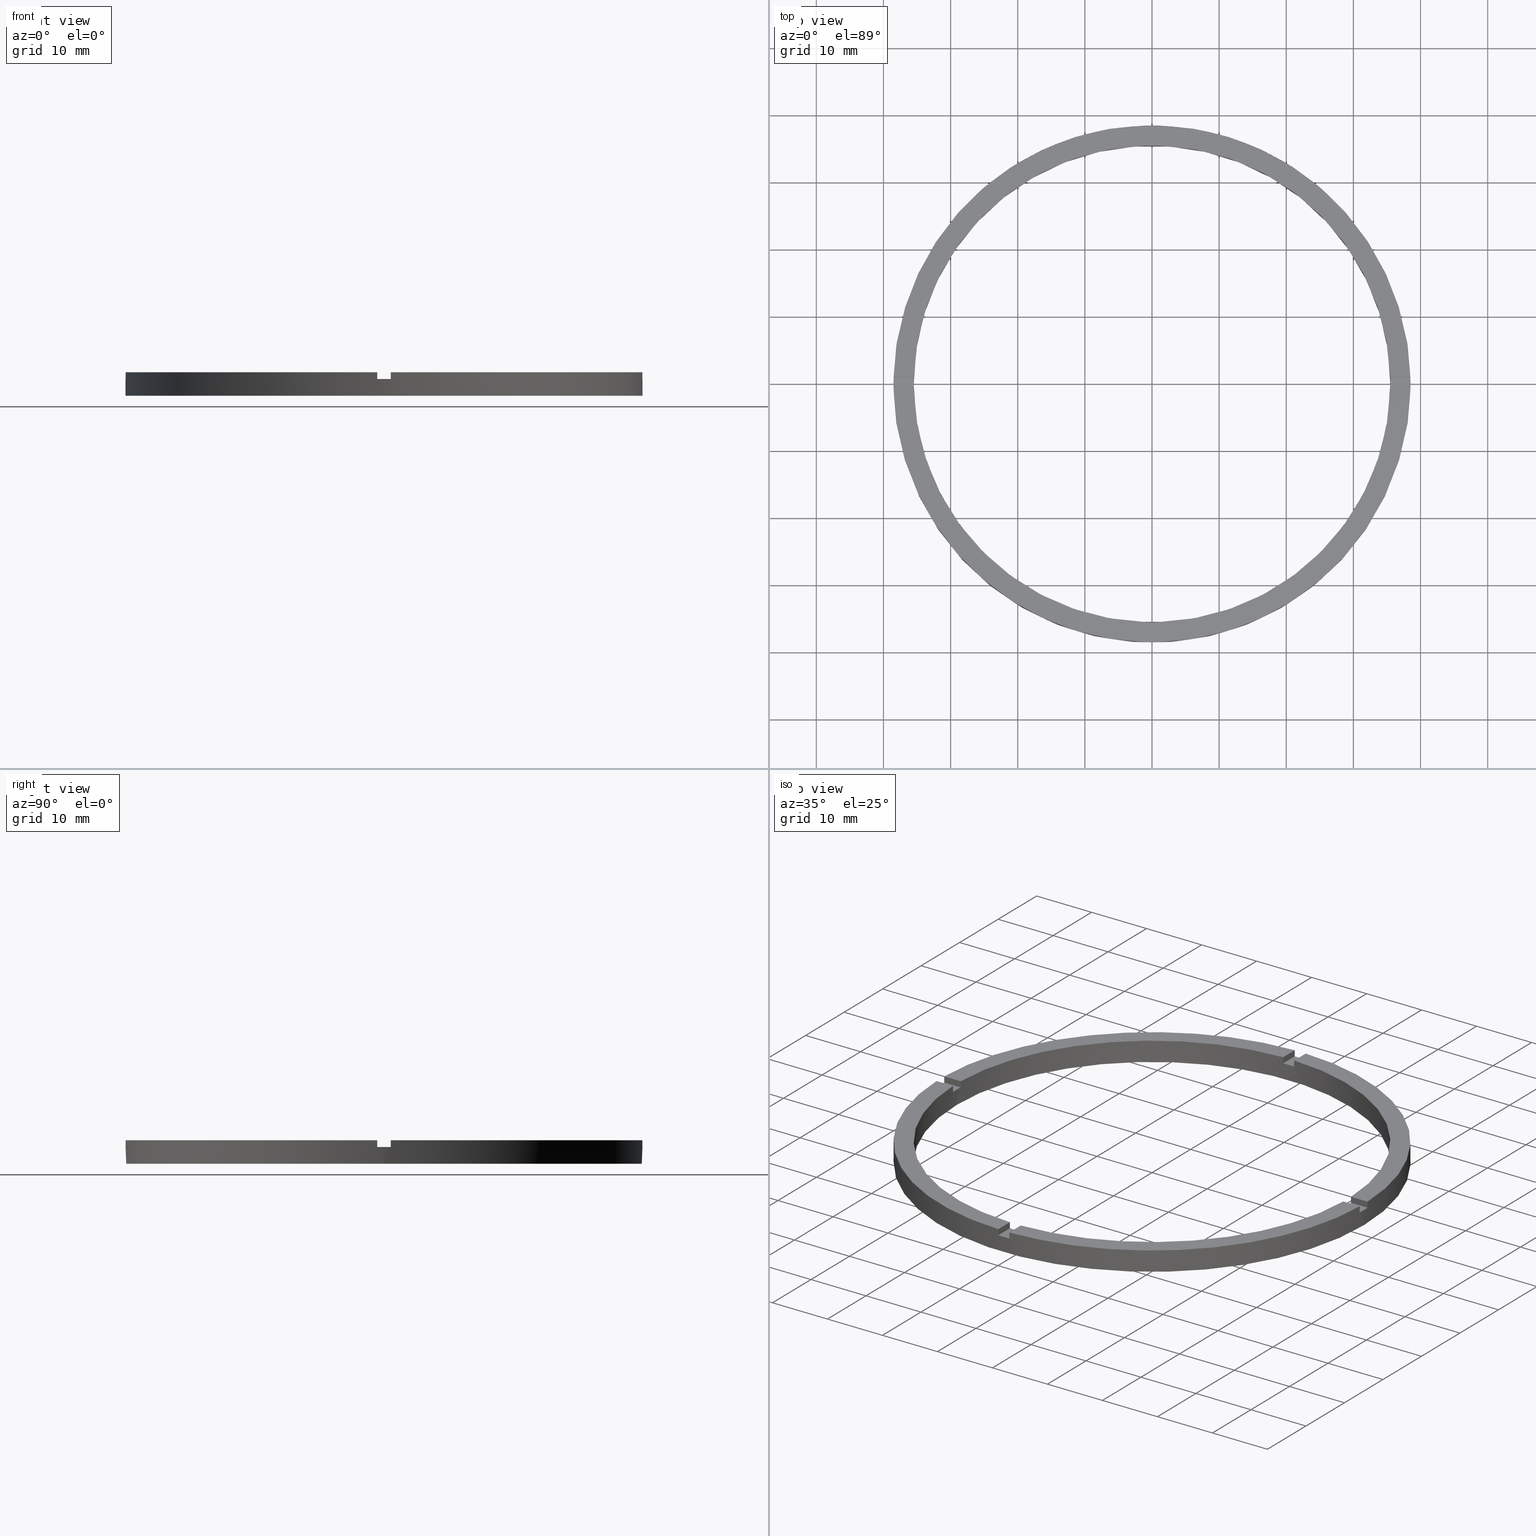
[diagram: canonical four-view strip — front | top / right | iso, engineering-drawing reading convention]
A machine part, canonical four-view strip (front | top / right | iso — engineering-drawing reading convention). The complete STEP part file that produces these views, byte-faithful:
ISO-10303-21;
HEADER;
FILE_DESCRIPTION (( 'STEP AP203' ),
    '1' );
FILE_NAME ('514158.step',
    '2024-12-26T02:43:10',
    ( 'MSI' ),
    ( '' ),
    'SwSTEP 2.0',
    'SolidWorks 2020',
    '' );
FILE_SCHEMA (( 'CONFIG_CONTROL_DESIGN' ));
ENDSEC;

DATA;
#1 = APPROVAL ( #595, 'δָ��' ) ;
#2 = EDGE_CURVE ( 'NONE', #715, #244, #297, .T. ) ;
#3 = CARTESIAN_POINT ( 'NONE',  ( 0.000000000000000000, 0.000000000000000000, 3.500000000000000000 ) ) ;
#4 = DIRECTION ( 'NONE',  ( 0.000000000000000000, 0.000000000000000000, 1.000000000000000000 ) ) ;
#5 = DIRECTION ( 'NONE',  ( 1.000000000000000000, 0.000000000000000000, 0.000000000000000000 ) ) ;
#6 = DIRECTION ( 'NONE',  ( -1.301042606982605074E-16, 1.000000000000000000, -0.000000000000000000 ) ) ;
#7 = EDGE_CURVE ( 'NONE', #715, #495, #549, .T. ) ;
#8 = ORIENTED_EDGE ( 'NONE', *, *, #578, .F. ) ;
#9 = DIRECTION ( 'NONE',  ( 1.000000000000000000, 0.000000000000000000, -0.000000000000000000 ) ) ;
#10 = CARTESIAN_POINT ( 'NONE',  ( -28.50000000000018474, -1.000000000000025979, 2.500000000000000000 ) ) ;
#11 = DIRECTION ( 'NONE',  ( -1.000000000000000000, -6.505213034913025371E-17, -0.000000000000000000 ) ) ;
#12 = CARTESIAN_POINT ( 'NONE',  ( 0.000000000000000000, 0.000000000000000000, 3.500000000000000000 ) ) ;
#13 = ORIENTED_EDGE ( 'NONE', *, *, #540, .T. ) ;
#14 = ORIENTED_EDGE ( 'NONE', *, *, #235, .T. ) ;
#15 = DIRECTION ( 'NONE',  ( -0.000000000000000000, -0.000000000000000000, -1.000000000000000000 ) ) ;
#16 = VERTEX_POINT ( 'NONE', #106 ) ;
#17 = DIRECTION ( 'NONE',  ( 1.000000000000000000, 1.951563910473907735E-16, -0.000000000000000000 ) ) ;
#18 = VECTOR ( 'NONE', #481, 1000.000000000000000 ) ;
#19 = CARTESIAN_POINT ( 'NONE',  ( 0.000000000000000000, 0.000000000000000000, 2.500000000000000000 ) ) ;
#20 = ORIENTED_EDGE ( 'NONE', *, *, #334, .T. ) ;
#21 = CARTESIAN_POINT ( 'NONE',  ( 0.9999999999998400169, -35.48591269785801927, 3.500000000000000000 ) ) ;
#22 = AXIS2_PLACEMENT_3D ( 'NONE', #107, #756, #745 ) ;
#23 = APPROVAL_STATUS ( 'not_yet_approved' ) ;
#24 = ORIENTED_EDGE ( 'NONE', *, *, #618, .T. ) ;
#25 = DIRECTION ( 'NONE',  ( 0.000000000000000000, 0.000000000000000000, 1.000000000000000000 ) ) ;
#26 = VERTEX_POINT ( 'NONE', #302 ) ;
#27 = EDGE_LOOP ( 'NONE', ( #751, #688, #755, #234 ) ) ;
#28 = ORIENTED_EDGE ( 'NONE', *, *, #366, .F. ) ;
#29 = CARTESIAN_POINT ( 'NONE',  ( -28.50000000000018474, -1.000000000000025979, 2.500000000000000000 ) ) ;
#30 = CARTESIAN_POINT ( 'NONE',  ( -1.000000000000159650, -38.48701079585163143, 2.500000000000000000 ) ) ;
#31 = CARTESIAN_POINT ( 'NONE',  ( -38.48701079585163143, -1.000000000000027978, 2.500000000000000000 ) ) ;
#32 = VECTOR ( 'NONE', #645, 1000.000000000000000 ) ;
#33 = AXIS2_PLACEMENT_3D ( 'NONE', #630, #398, #663 ) ;
#34 = CC_DESIGN_PERSON_AND_ORGANIZATION_ASSIGNMENT ( #360, #120, ( #556 ) ) ;
#35 = EDGE_CURVE ( 'NONE', #493, #528, #274, .T. ) ;
#36 = AXIS2_PLACEMENT_3D ( 'NONE', #206, #140, #277 ) ;
#37 = DIRECTION ( 'NONE',  ( -1.000000000000000000, 0.000000000000000000, 0.000000000000000000 ) ) ;
#38 = LINE ( 'NONE', #237, #43 ) ;
#39 = FACE_OUTER_BOUND ( 'NONE', #459, .T. ) ;
#40 = DIRECTION ( 'NONE',  ( 1.000000000000000000, 0.000000000000000000, 0.000000000000000000 ) ) ;
#41 = CARTESIAN_POINT ( 'NONE',  ( 0.9999999999999746869, 35.48591269785801217, 3.500000000000000000 ) ) ;
#42 = EDGE_CURVE ( 'NONE', #71, #695, #291, .T. ) ;
#43 = VECTOR ( 'NONE', #567, 1000.000000000000000 ) ;
#44 = DATE_TIME_ROLE ( 'classification_date' ) ;
#45 = DIRECTION ( 'NONE',  ( -1.951563910473907735E-16, 1.000000000000000000, 0.000000000000000000 ) ) ;
#46 = VECTOR ( 'NONE', #205, 1000.000000000000000 ) ;
#47 = CIRCLE ( 'NONE', #284, 35.50000000000000711 ) ;
#48 = DIRECTION ( 'NONE',  ( 1.000000000000000000, 0.000000000000000000, 0.000000000000000000 ) ) ;
#49 = LINE ( 'NONE', #775, #569 ) ;
#50 = ADVANCED_FACE ( 'NONE', ( #537 ), #753, .F. ) ;
#51 = CARTESIAN_POINT ( 'NONE',  ( 38.48701079585163143, -1.000000000000157208, 2.500000000000000000 ) ) ;
#52 = CYLINDRICAL_SURFACE ( 'NONE', #681, 35.50000000000000711 ) ;
#53 = FACE_OUTER_BOUND ( 'NONE', #203, .T. ) ;
#54 = DIRECTION ( 'NONE',  ( 0.000000000000000000, 0.000000000000000000, 1.000000000000000000 ) ) ;
#55 = DIRECTION ( 'NONE',  ( -1.000000000000000000, -6.505213034913025371E-17, -0.000000000000000000 ) ) ;
#56 = AXIS2_PLACEMENT_3D ( 'NONE', #498, #550, #315 ) ;
#57 = FACE_OUTER_BOUND ( 'NONE', #27, .T. ) ;
#58 = DIRECTION ( 'NONE',  ( 0.000000000000000000, 0.000000000000000000, 1.000000000000000000 ) ) ;
#59 = CARTESIAN_POINT ( 'NONE',  ( -1.000000000000025313, 28.49999999999999645, 3.500000000000000000 ) ) ;
#60 = LINE ( 'NONE', #716, #602 ) ;
#61 = DIRECTION ( 'NONE',  ( 0.000000000000000000, 0.000000000000000000, 1.000000000000000000 ) ) ;
#62 = ORIENTED_EDGE ( 'NONE', *, *, #647, .T. ) ;
#63 = DIRECTION ( 'NONE',  ( -1.000000000000000000, 0.000000000000000000, 0.000000000000000000 ) ) ;
#64 = VECTOR ( 'NONE', #327, 1000.000000000000000 ) ;
#65 = ORIENTED_EDGE ( 'NONE', *, *, #301, .F. ) ;
#66 = DIRECTION ( 'NONE',  ( 0.000000000000000000, 1.000000000000000000, 0.000000000000000000 ) ) ;
#67 = CIRCLE ( 'NONE', #692, 35.50000000000000711 ) ;
#68 = ORIENTED_EDGE ( 'NONE', *, *, #270, .T. ) ;
#69 = ORGANIZATION ( 'δָ��', 'δָ��', '' ) ;
#70 = LINE ( 'NONE', #733, #346 ) ;
#71 = VERTEX_POINT ( 'NONE', #384 ) ;
#72 = EDGE_CURVE ( 'NONE', #673, #182, #562, .T. ) ;
#73 = PLANE ( 'NONE',  #409 ) ;
#74 = AXIS2_PLACEMENT_3D ( 'NONE', #12, #510, #125 ) ;
#75 = PERSON_AND_ORGANIZATION ( #306, #69 ) ;
#76 = FACE_OUTER_BOUND ( 'NONE', #458, .T. ) ;
#77 = ORIENTED_EDGE ( 'NONE', *, *, #606, .F. ) ;
#78 = DIRECTION ( 'NONE',  ( -0.000000000000000000, -0.000000000000000000, -1.000000000000000000 ) ) ;
#79 = FACE_OUTER_BOUND ( 'NONE', #287, .T. ) ;
#80 = CALENDAR_DATE ( 2024, 26, 12 ) ;
#81 = CIRCLE ( 'NONE', #590, 35.50000000000000711 ) ;
#82 = CALENDAR_DATE ( 2024, 26, 12 ) ;
#83 = FACE_OUTER_BOUND ( 'NONE', #186, .T. ) ;
#84 = DIRECTION ( 'NONE',  ( -0.000000000000000000, -0.000000000000000000, -1.000000000000000000 ) ) ;
#85 = DATE_AND_TIME ( #343, #351 ) ;
#86 = CIRCLE ( 'NONE', #119, 38.50000000000000000 ) ;
#87 = PERSON_AND_ORGANIZATION ( #306, #69 ) ;
#88 = DIRECTION ( 'NONE',  ( 1.000000000000000000, 0.000000000000000000, 0.000000000000000000 ) ) ;
#89 = FACE_OUTER_BOUND ( 'NONE', #674, .T. ) ;
#90 = EDGE_CURVE ( 'NONE', #443, #16, #322, .T. ) ;
#91 = LINE ( 'NONE', #255, #591 ) ;
#92 = LOCAL_TIME ( 10, 43, 10.00000000000000000, #358 ) ;
#93 = EDGE_CURVE ( 'NONE', #763, #190, #311, .T. ) ;
#94 = APPLICATION_CONTEXT ( 'configuration controlled 3d designs of mechanical parts and assemblies' ) ;
#95 = DIRECTION ( 'NONE',  ( -1.000000000000000000, -1.951563910473907735E-16, 0.000000000000000000 ) ) ;
#96 = APPROVAL_PERSON_ORGANIZATION ( #341, #379, #679 ) ;
#97 = DATE_AND_TIME ( #616, #92 ) ;
#98 = CARTESIAN_POINT ( 'NONE',  ( 0.000000000000000000, 0.000000000000000000, 3.500000000000000000 ) ) ;
#99 = COORDINATED_UNIVERSAL_TIME_OFFSET ( 8, 0, .AHEAD. ) ;
#100 = DIRECTION ( 'NONE',  ( -1.000000000000000000, 0.000000000000000000, 0.000000000000000000 ) ) ;
#101 = CARTESIAN_POINT ( 'NONE',  ( 0.000000000000000000, 0.000000000000000000, 3.500000000000000000 ) ) ;
#102 = CARTESIAN_POINT ( 'NONE',  ( -1.000000000000025313, 35.48591269785801217, 3.500000000000000000 ) ) ;
#103 = PRODUCT_DEFINITION_SHAPE ( 'NONE', 'NONE',  #127 ) ;
#104 = ADVANCED_FACE ( 'NONE', ( #53 ), #166, .T. ) ;
#105 = MANIFOLD_SOLID_BREP ( '�г�-����1', #211 ) ;
#106 = CARTESIAN_POINT ( 'NONE',  ( -1.000000000000025313, 38.48701079585163143, 2.500000000000000000 ) ) ;
#107 = CARTESIAN_POINT ( 'NONE',  ( 0.000000000000000000, 0.000000000000000000, 3.500000000000000000 ) ) ;
#108 = ADVANCED_FACE ( 'NONE', ( #308 ), #575, .T. ) ;
#109 =( LENGTH_UNIT ( ) NAMED_UNIT ( * ) SI_UNIT ( .MILLI., .METRE. ) );
#110 = AXIS2_PLACEMENT_3D ( 'NONE', #404, #619, #123 ) ;
#111 = CC_DESIGN_APPROVAL ( #1, ( #556 ) ) ;
#112 = CARTESIAN_POINT ( 'NONE',  ( 28.49999999999998934, -1.000000000000157874, 2.500000000000000000 ) ) ;
#113 = ADVANCED_FACE ( 'NONE', ( #57 ), #718, .T. ) ;
#114 = CARTESIAN_POINT ( 'NONE',  ( 0.9999999999999746869, 35.48591269785801217, 3.500000000000000000 ) ) ;
#115 = DIRECTION ( 'NONE',  ( 1.000000000000000000, 0.000000000000000000, -0.000000000000000000 ) ) ;
#116 = AXIS2_PLACEMENT_3D ( 'NONE', #603, #517, #773 ) ;
#117 = DIRECTION ( 'NONE',  ( -0.000000000000000000, 0.000000000000000000, 1.000000000000000000 ) ) ;
#118 = EDGE_CURVE ( 'NONE', #493, #760, #299, .T. ) ;
#119 = AXIS2_PLACEMENT_3D ( 'NONE', #623, #504, #376 ) ;
#120 = PERSON_AND_ORGANIZATION_ROLE ( 'classification_officer' ) ;
#121 = DIRECTION ( 'NONE',  ( -1.000000000000000000, -1.951563910473907735E-16, 0.000000000000000000 ) ) ;
#122 = CARTESIAN_POINT ( 'NONE',  ( 0.000000000000000000, 0.000000000000000000, 0.000000000000000000 ) ) ;
#123 = DIRECTION ( 'NONE',  ( 1.000000000000000000, 0.000000000000000000, 0.000000000000000000 ) ) ;
#124 = CARTESIAN_POINT ( 'NONE',  ( -1.000000000000160094, -35.48591269785800506, 3.500000000000000000 ) ) ;
#125 = DIRECTION ( 'NONE',  ( 1.000000000000000000, 0.000000000000000000, -0.000000000000000000 ) ) ;
#126 = CARTESIAN_POINT ( 'NONE',  ( 0.000000000000000000, 0.000000000000000000, 3.500000000000000000 ) ) ;
#127 = PRODUCT_DEFINITION ( 'δ֪', '', #285, #734 ) ;
#128 = CARTESIAN_POINT ( 'NONE',  ( 28.49999999999998934, -1.000000000000157874, 2.500000000000000000 ) ) ;
#129 = AXIS2_PLACEMENT_3D ( 'NONE', #126, #146, #115 ) ;
#130 = EDGE_CURVE ( 'NONE', #728, #495, #568, .T. ) ;
#131 = PLANE ( 'NONE',  #74 ) ;
#132 = APPLICATION_PROTOCOL_DEFINITION ( 'international standard', 'config_control_design', 1994, #94 ) ;
#133 = CARTESIAN_POINT ( 'NONE',  ( -35.48591269785801217, -1.000000000000027311, 3.500000000000000000 ) ) ;
#134 = AXIS2_PLACEMENT_3D ( 'NONE', #112, #666, #355 ) ;
#135 = AXIS2_PLACEMENT_3D ( 'NONE', #390, #471, #212 ) ;
#136 = ADVANCED_FACE ( 'NONE', ( #552 ), #251, .F. ) ;
#137 = EDGE_CURVE ( 'NONE', #493, #429, #38, .T. ) ;
#138 = DIRECTION ( 'NONE',  ( 1.000000000000000000, 0.000000000000000000, 0.000000000000000000 ) ) ;
#139 = DIRECTION ( 'NONE',  ( 0.000000000000000000, 0.000000000000000000, 1.000000000000000000 ) ) ;
#140 = DIRECTION ( 'NONE',  ( 0.000000000000000000, 0.000000000000000000, 1.000000000000000000 ) ) ;
#141 = CARTESIAN_POINT ( 'NONE',  ( 38.48701079585163853, 0.9999999999998427924, 2.500000000000000000 ) ) ;
#142 = DIRECTION ( 'NONE',  ( 1.000000000000000000, 0.000000000000000000, 0.000000000000000000 ) ) ;
#143 = ADVANCED_FACE ( 'NONE', ( #39 ), #226, .F. ) ;
#144 =( NAMED_UNIT ( * ) PLANE_ANGLE_UNIT ( ) SI_UNIT ( $, .RADIAN. ) );
#145 = AXIS2_PLACEMENT_3D ( 'NONE', #449, #236, #572 ) ;
#146 = DIRECTION ( 'NONE',  ( 0.000000000000000000, 0.000000000000000000, 1.000000000000000000 ) ) ;
#147 = EDGE_LOOP ( 'NONE', ( #14, #24 ) ) ;
#148 = DIRECTION ( 'NONE',  ( 1.951563910473907735E-16, -1.000000000000000000, 0.000000000000000000 ) ) ;
#149 = PERSON_AND_ORGANIZATION ( #306, #69 ) ;
#150 = CARTESIAN_POINT ( 'NONE',  ( 0.000000000000000000, 0.000000000000000000, 3.500000000000000000 ) ) ;
#151 = DIRECTION ( 'NONE',  ( -0.000000000000000000, -0.000000000000000000, -1.000000000000000000 ) ) ;
#152 = ORIENTED_EDGE ( 'NONE', *, *, #577, .F. ) ;
#153 = LOCAL_TIME ( 10, 43, 10.00000000000000000, #670 ) ;
#154 = CC_DESIGN_PERSON_AND_ORGANIZATION_ASSIGNMENT ( #608, #515, ( #285 ) ) ;
#155 = AXIS2_PLACEMENT_3D ( 'NONE', #560, #631, #40 ) ;
#156 = VERTEX_POINT ( 'NONE', #580 ) ;
#157 = DATE_AND_TIME ( #414, #153 ) ;
#158 = ORIENTED_EDGE ( 'NONE', *, *, #90, .F. ) ;
#159 = DIRECTION ( 'NONE',  ( 0.000000000000000000, 0.000000000000000000, 1.000000000000000000 ) ) ;
#160 = ORIENTED_EDGE ( 'NONE', *, *, #388, .T. ) ;
#161 = CARTESIAN_POINT ( 'NONE',  ( 28.49999999999998934, -1.000000000000157874, 3.500000000000000000 ) ) ;
#162 = ORIENTED_EDGE ( 'NONE', *, *, #419, .F. ) ;
#163 = EDGE_LOOP ( 'NONE', ( #752, #8, #469, #423, #691, #547, #331, #193, #196, #472, #324, #461 ) ) ;
#164 = ORIENTED_EDGE ( 'NONE', *, *, #349, .T. ) ;
#165 = DIRECTION ( 'NONE',  ( 1.000000000000000000, 0.000000000000000000, 0.000000000000000000 ) ) ;
#166 = PLANE ( 'NONE',  #529 ) ;
#167 = ORIENTED_EDGE ( 'NONE', *, *, #230, .F. ) ;
#168 = DIRECTION ( 'NONE',  ( -0.000000000000000000, -1.000000000000000000, -0.000000000000000000 ) ) ;
#169 = EDGE_CURVE ( 'NONE', #702, #244, #309, .T. ) ;
#170 = ORIENTED_EDGE ( 'NONE', *, *, #503, .T. ) ;
#171 = EDGE_CURVE ( 'NONE', #490, #448, #47, .T. ) ;
#172 = EDGE_LOOP ( 'NONE', ( #421, #584, #707, #437 ) ) ;
#173 = ORIENTED_EDGE ( 'NONE', *, *, #214, .T. ) ;
#174 = CARTESIAN_POINT ( 'NONE',  ( 0.9999999999998391287, -28.50000000000017764, 2.500000000000000000 ) ) ;
#175 = CARTESIAN_POINT ( 'NONE',  ( 0.000000000000000000, 0.000000000000000000, 3.500000000000000000 ) ) ;
#176 = ORIENTED_EDGE ( 'NONE', *, *, #366, .T. ) ;
#177 = DIRECTION ( 'NONE',  ( 1.000000000000000000, 0.000000000000000000, 0.000000000000000000 ) ) ;
#178 = CARTESIAN_POINT ( 'NONE',  ( 0.9999999999998391287, -28.50000000000017764, 2.500000000000000000 ) ) ;
#179 = VERTEX_POINT ( 'NONE', #680 ) ;
#180 = ORIENTED_EDGE ( 'NONE', *, *, #396, .T. ) ;
#181 = CARTESIAN_POINT ( 'NONE',  ( 0.000000000000000000, 0.000000000000000000, 2.500000000000000000 ) ) ;
#182 = VERTEX_POINT ( 'NONE', #451 ) ;
#183 = DIRECTION ( 'NONE',  ( 1.000000000000000000, 1.951563910473907735E-16, -0.000000000000000000 ) ) ;
#184 = EDGE_CURVE ( 'NONE', #683, #715, #49, .T. ) ;
#185 = ORIENTED_EDGE ( 'NONE', *, *, #705, .F. ) ;
#186 = EDGE_LOOP ( 'NONE', ( #192, #13, #20, #185, #483, #464 ) ) ;
#187 = ORIENTED_EDGE ( 'NONE', *, *, #130, .T. ) ;
#188 = CARTESIAN_POINT ( 'NONE',  ( -1.000000000000160982, -28.50000000000017764, 2.500000000000000000 ) ) ;
#189 = ORIENTED_EDGE ( 'NONE', *, *, #269, .F. ) ;
#190 = VERTEX_POINT ( 'NONE', #381 ) ;
#191 = ORIENTED_EDGE ( 'NONE', *, *, #408, .F. ) ;
#192 = ORIENTED_EDGE ( 'NONE', *, *, #371, .T. ) ;
#193 = ORIENTED_EDGE ( 'NONE', *, *, #130, .F. ) ;
#194 = VERTEX_POINT ( 'NONE', #392 ) ;
#195 = PERSON_AND_ORGANIZATION_ROLE ( 'design_owner' ) ;
#196 = ORIENTED_EDGE ( 'NONE', *, *, #408, .T. ) ;
#197 = CARTESIAN_POINT ( 'NONE',  ( -1.000000000000160094, -35.48591269785800506, 2.500000000000000000 ) ) ;
#198 = VERTEX_POINT ( 'NONE', #41 ) ;
#199 = AXIS2_PLACEMENT_3D ( 'NONE', #665, #586, #138 ) ;
#200 = ORIENTED_EDGE ( 'NONE', *, *, #641, .F. ) ;
#201 = EDGE_LOOP ( 'NONE', ( #468, #453, #213, #191 ) ) ;
#202 = ORIENTED_EDGE ( 'NONE', *, *, #621, .T. ) ;
#203 = EDGE_LOOP ( 'NONE', ( #418, #164, #224, #222, #342, #667 ) ) ;
#204 = DIRECTION ( 'NONE',  ( 0.000000000000000000, 0.000000000000000000, 1.000000000000000000 ) ) ;
#205 = DIRECTION ( 'NONE',  ( -0.000000000000000000, -0.000000000000000000, -1.000000000000000000 ) ) ;
#206 = CARTESIAN_POINT ( 'NONE',  ( 0.000000000000000000, 0.000000000000000000, 2.500000000000000000 ) ) ;
#207 = VERTEX_POINT ( 'NONE', #427 ) ;
#208 = ADVANCED_FACE ( 'NONE', ( #758 ), #395, .F. ) ;
#209 = ORIENTED_EDGE ( 'NONE', *, *, #620, .F. ) ;
#210 = AXIS2_PLACEMENT_3D ( 'NONE', #783, #45, #121 ) ;
#211 = CLOSED_SHELL ( 'NONE', ( #764, #108, #382, #113, #776, #570, #628, #780, #290, #50, #136, #600, #393, #581, #516, #232, #143, #104, #639, #208, #686 ) ) ;
#212 = DIRECTION ( 'NONE',  ( 1.000000000000000000, 0.000000000000000000, 0.000000000000000000 ) ) ;
#213 = ORIENTED_EDGE ( 'NONE', *, *, #334, .F. ) ;
#214 = EDGE_CURVE ( 'NONE', #673, #194, #492, .T. ) ;
#215 = CARTESIAN_POINT ( 'NONE',  ( -1.000000000000025313, 35.48591269785801217, 3.500000000000000000 ) ) ;
#216 = AXIS2_PLACEMENT_3D ( 'NONE', #400, #704, #4 ) ;
#217 = LINE ( 'NONE', #383, #501 ) ;
#218 = VERTEX_POINT ( 'NONE', #31 ) ;
#219 = ADVANCED_BREP_SHAPE_REPRESENTATION ( '514158', ( #105, #523 ), #632 ) ;
#220 = VECTOR ( 'NONE', #151, 1000.000000000000000 ) ;
#221 = LINE ( 'NONE', #588, #474 ) ;
#222 = ORIENTED_EDGE ( 'NONE', *, *, #330, .F. ) ;
#223 = LINE ( 'NONE', #264, #769 ) ;
#224 = ORIENTED_EDGE ( 'NONE', *, *, #512, .T. ) ;
#225 = DIRECTION ( 'NONE',  ( 0.000000000000000000, 0.000000000000000000, 1.000000000000000000 ) ) ;
#226 = PLANE ( 'NONE',  #134 ) ;
#227 = VECTOR ( 'NONE', #694, 1000.000000000000000 ) ;
#228 = ORIENTED_EDGE ( 'NONE', *, *, #93, .F. ) ;
#229 = CIRCLE ( 'NONE', #622, 35.50000000000000711 ) ;
#230 = EDGE_CURVE ( 'NONE', #542, #770, #771, .T. ) ;
#231 = ORIENTED_EDGE ( 'NONE', *, *, #659, .F. ) ;
#232 = ADVANCED_FACE ( 'NONE', ( #256 ), #519, .F. ) ;
#233 = LINE ( 'NONE', #128, #486 ) ;
#234 = ORIENTED_EDGE ( 'NONE', *, *, #701, .T. ) ;
#235 = EDGE_CURVE ( 'NONE', #26, #770, #754, .T. ) ;
#236 = DIRECTION ( 'NONE',  ( 0.000000000000000000, 0.000000000000000000, 1.000000000000000000 ) ) ;
#237 = CARTESIAN_POINT ( 'NONE',  ( -35.48591269785801217, 0.9999999999999726885, 3.500000000000000000 ) ) ;
#238 = LINE ( 'NONE', #320, #488 ) ;
#239 = ORIENTED_EDGE ( 'NONE', *, *, #690, .T. ) ;
#240 = LINE ( 'NONE', #627, #725 ) ;
#241 = EDGE_LOOP ( 'NONE', ( #160, #478, #411, #162 ) ) ;
#242 = ORIENTED_EDGE ( 'NONE', *, *, #35, .F. ) ;
#243 = VECTOR ( 'NONE', #545, 1000.000000000000000 ) ;
#244 = VERTEX_POINT ( 'NONE', #422 ) ;
#245 = CARTESIAN_POINT ( 'NONE',  ( 0.000000000000000000, 0.000000000000000000, 2.500000000000000000 ) ) ;
#246 = LINE ( 'NONE', #410, #762 ) ;
#247 = VECTOR ( 'NONE', #522, 1000.000000000000000 ) ;
#248 = VERTEX_POINT ( 'NONE', #377 ) ;
#249 = VECTOR ( 'NONE', #312, 1000.000000000000000 ) ;
#250 = VERTEX_POINT ( 'NONE', #21 ) ;
#251 = PLANE ( 'NONE',  #210 ) ;
#252 = LINE ( 'NONE', #10, #470 ) ;
#253 = VECTOR ( 'NONE', #534, 1000.000000000000000 ) ;
#254 = LINE ( 'NONE', #305, #509 ) ;
#255 = CARTESIAN_POINT ( 'NONE',  ( 38.50000000000000000, 4.714890176717309515E-15, 3.500000000000000000 ) ) ;
#256 = FACE_OUTER_BOUND ( 'NONE', #463, .T. ) ;
#257 = LINE ( 'NONE', #59, #500 ) ;
#258 = CARTESIAN_POINT ( 'NONE',  ( -1.000000000000025313, 35.48591269785801217, 2.500000000000000000 ) ) ;
#259 = CARTESIAN_POINT ( 'NONE',  ( -38.50000000000000000, 0.000000000000000000, 3.500000000000000000 ) ) ;
#260 = DIRECTION ( 'NONE',  ( 1.000000000000000000, 0.000000000000000000, -0.000000000000000000 ) ) ;
#261 = DIRECTION ( 'NONE',  ( 0.000000000000000000, 0.000000000000000000, 1.000000000000000000 ) ) ;
#262 = DIRECTION ( 'NONE',  ( -0.000000000000000000, -0.000000000000000000, -1.000000000000000000 ) ) ;
#263 = DIRECTION ( 'NONE',  ( 1.000000000000000000, 6.505213034913025371E-17, 0.000000000000000000 ) ) ;
#264 = CARTESIAN_POINT ( 'NONE',  ( -1.000000000000025313, 28.49999999999999645, 2.500000000000000000 ) ) ;
#265 = EDGE_CURVE ( 'NONE', #713, #179, #217, .T. ) ;
#266 = AXIS2_PLACEMENT_3D ( 'NONE', #624, #58, #9 ) ;
#267 = DIRECTION ( 'NONE',  ( -1.301042606982605074E-16, 1.000000000000000000, -0.000000000000000000 ) ) ;
#268 = CARTESIAN_POINT ( 'NONE',  ( 0.000000000000000000, 0.000000000000000000, 2.500000000000000000 ) ) ;
#269 = EDGE_CURVE ( 'NONE', #728, #673, #240, .T. ) ;
#270 = EDGE_CURVE ( 'NONE', #156, #198, #777, .T. ) ;
#271 = APPLICATION_CONTEXT ( 'configuration controlled 3d designs of mechanical parts and assemblies' ) ;
#272 = DIRECTION ( 'NONE',  ( 1.301042606982605074E-16, -1.000000000000000000, 0.000000000000000000 ) ) ;
#273 = DIRECTION ( 'NONE',  ( 1.000000000000000000, 1.951563910473907735E-16, 0.000000000000000000 ) ) ;
#274 = LINE ( 'NONE', #636, #527 ) ;
#275 = CARTESIAN_POINT ( 'NONE',  ( 0.000000000000000000, 0.000000000000000000, 3.500000000000000000 ) ) ;
#276 = CARTESIAN_POINT ( 'NONE',  ( 0.9999999999998404610, -38.48701079585163853, 3.500000000000000000 ) ) ;
#277 = DIRECTION ( 'NONE',  ( 1.000000000000000000, 0.000000000000000000, 0.000000000000000000 ) ) ;
#278 = CC_DESIGN_APPROVAL ( #379, ( #127 ) ) ;
#279 = ORIENTED_EDGE ( 'NONE', *, *, #406, .T. ) ;
#280 = CARTESIAN_POINT ( 'NONE',  ( 35.50000000000000711, 4.347496136973104070E-15, 0.000000000000000000 ) ) ;
#281 = CARTESIAN_POINT ( 'NONE',  ( 0.000000000000000000, 0.000000000000000000, 2.500000000000000000 ) ) ;
#282 = ORIENTED_EDGE ( 'NONE', *, *, #462, .T. ) ;
#283 = VERTEX_POINT ( 'NONE', #726 ) ;
#284 = AXIS2_PLACEMENT_3D ( 'NONE', #281, #289, #643 ) ;
#285 = PRODUCT_DEFINITION_FORMATION_WITH_SPECIFIED_SOURCE ( '�κ�', '', #433, .NOT_KNOWN. ) ;
#286 = EDGE_CURVE ( 'NONE', #179, #714, #477, .T. ) ;
#287 = EDGE_LOOP ( 'NONE', ( #531, #438, #536, #548 ) ) ;
#288 = DIRECTION ( 'NONE',  ( 1.000000000000000000, 0.000000000000000000, 0.000000000000000000 ) ) ;
#289 = DIRECTION ( 'NONE',  ( 0.000000000000000000, -0.000000000000000000, 1.000000000000000000 ) ) ;
#290 = ADVANCED_FACE ( 'NONE', ( #761 ), #507, .F. ) ;
#291 = LINE ( 'NONE', #782, #18 ) ;
#292 = CARTESIAN_POINT ( 'NONE',  ( -38.50000000000000000, 0.000000000000000000, 2.500000000000000000 ) ) ;
#293 = CARTESIAN_POINT ( 'NONE',  ( 0.9999999999999746869, 38.48701079585163143, 2.500000000000000000 ) ) ;
#294 = ORIENTED_EDGE ( 'NONE', *, *, #530, .F. ) ;
#295 = AXIS2_PLACEMENT_3D ( 'NONE', #178, #499, #727 ) ;
#296 = DIRECTION ( 'NONE',  ( 1.000000000000000000, 0.000000000000000000, 0.000000000000000000 ) ) ;
#297 = CIRCLE ( 'NONE', #135, 38.50000000000000000 ) ;
#298 = CARTESIAN_POINT ( 'NONE',  ( 0.000000000000000000, 0.000000000000000000, 3.500000000000000000 ) ) ;
#299 = CIRCLE ( 'NONE', #654, 35.50000000000000711 ) ;
#300 = EDGE_CURVE ( 'NONE', #490, #443, #246, .T. ) ;
#301 = EDGE_CURVE ( 'NONE', #528, #190, #494, .T. ) ;
#302 = CARTESIAN_POINT ( 'NONE',  ( -35.50000000000000711, 0.000000000000000000, 0.000000000000000000 ) ) ;
#303 = DIRECTION ( 'NONE',  ( 1.301042606982605074E-16, -1.000000000000000000, 0.000000000000000000 ) ) ;
#304 = CARTESIAN_POINT ( 'NONE',  ( 0.000000000000000000, 0.000000000000000000, 3.500000000000000000 ) ) ;
#305 = CARTESIAN_POINT ( 'NONE',  ( 28.49999999999998934, 0.9999999999998421263, 3.500000000000000000 ) ) ;
#306 = PERSON ( 'δָ��', 'δָ��', 'δָ��', ('δָ��'), ('δָ��'), ('δָ��') ) ;
#307 = AXIS2_PLACEMENT_3D ( 'NONE', #524, #774, #37 ) ;
#308 = FACE_OUTER_BOUND ( 'NONE', #344, .T. ) ;
#309 = LINE ( 'NONE', #276, #46 ) ;
#310 = DIRECTION ( 'NONE',  ( 1.000000000000000000, 6.505213034913025371E-17, 0.000000000000000000 ) ) ;
#311 = CIRCLE ( 'NONE', #563, 38.50000000000000000 ) ;
#312 = DIRECTION ( 'NONE',  ( 0.000000000000000000, 0.000000000000000000, 1.000000000000000000 ) ) ;
#313 = PLANE ( 'NONE',  #532 ) ;
#314 = AXIS2_PLACEMENT_3D ( 'NONE', #298, #78, #625 ) ;
#315 = DIRECTION ( 'NONE',  ( 1.000000000000000000, 0.000000000000000000, 0.000000000000000000 ) ) ;
#316 = CC_DESIGN_SECURITY_CLASSIFICATION ( #556, ( #285 ) ) ;
#317 = VECTOR ( 'NONE', #557, 1000.000000000000000 ) ;
#318 = EDGE_CURVE ( 'NONE', #425, #714, #497, .T. ) ;
#319 = FACE_OUTER_BOUND ( 'NONE', #535, .T. ) ;
#320 = CARTESIAN_POINT ( 'NONE',  ( -1.000000000000160982, -28.50000000000017764, 3.500000000000000000 ) ) ;
#321 = CYLINDRICAL_SURFACE ( 'NONE', #307, 38.50000000000000000 ) ;
#322 = CIRCLE ( 'NONE', #116, 38.50000000000000000 ) ;
#323 = DIRECTION ( 'NONE',  ( 0.000000000000000000, 0.000000000000000000, 1.000000000000000000 ) ) ;
#324 = ORIENTED_EDGE ( 'NONE', *, *, #606, .T. ) ;
#325 = VECTOR ( 'NONE', #362, 1000.000000000000000 ) ;
#326 = APPROVAL_STATUS ( 'not_yet_approved' ) ;
#327 = DIRECTION ( 'NONE',  ( -0.000000000000000000, -0.000000000000000000, -1.000000000000000000 ) ) ;
#328 = AXIS2_PLACEMENT_3D ( 'NONE', #658, #533, #738 ) ;
#329 = VECTOR ( 'NONE', #267, 1000.000000000000000 ) ;
#330 = EDGE_CURVE ( 'NONE', #542, #248, #743, .T. ) ;
#331 = ORIENTED_EDGE ( 'NONE', *, *, #7, .T. ) ;
#332 = CARTESIAN_POINT ( 'NONE',  ( 0.000000000000000000, 0.000000000000000000, 0.000000000000000000 ) ) ;
#333 = LINE ( 'NONE', #102, #64 ) ;
#334 = EDGE_CURVE ( 'NONE', #218, #182, #252, .T. ) ;
#335 = ORIENTED_EDGE ( 'NONE', *, *, #620, .T. ) ;
#336 = CIRCLE ( 'NONE', #649, 35.50000000000000711 ) ;
#337 = CARTESIAN_POINT ( 'NONE',  ( 0.000000000000000000, 0.000000000000000000, 0.000000000000000000 ) ) ;
#338 = ORIENTED_EDGE ( 'NONE', *, *, #230, .T. ) ;
#339 = CARTESIAN_POINT ( 'NONE',  ( -28.50000000000018474, 0.9999999999999740208, 3.500000000000000000 ) ) ;
#340 = ORIENTED_EDGE ( 'NONE', *, *, #778, .T. ) ;
#341 = PERSON_AND_ORGANIZATION ( #306, #69 ) ;
#342 = ORIENTED_EDGE ( 'NONE', *, *, #660, .F. ) ;
#343 = CALENDAR_DATE ( 2024, 26, 12 ) ;
#344 = EDGE_LOOP ( 'NONE', ( #732, #721, #176, #77, #424, #487, #228, #684, #158, #434, #457, #585 ) ) ;
#345 = CARTESIAN_POINT ( 'NONE',  ( -35.48591269785801217, -1.000000000000027311, 3.500000000000000000 ) ) ;
#346 = VECTOR ( 'NONE', #84, 1000.000000000000000 ) ;
#347 = CIRCLE ( 'NONE', #199, 38.50000000000000000 ) ;
#348 = DATE_AND_TIME ( #80, #592 ) ;
#349 = EDGE_CURVE ( 'NONE', #207, #695, #766, .T. ) ;
#350 = FACE_OUTER_BOUND ( 'NONE', #466, .T. ) ;
#351 = LOCAL_TIME ( 10, 43, 10.00000000000000000, #594 ) ;
#352 = FACE_OUTER_BOUND ( 'NONE', #241, .T. ) ;
#353 = LINE ( 'NONE', #124, #576 ) ;
#354 = CARTESIAN_POINT ( 'NONE',  ( 35.48591269785800506, -1.000000000000157430, 2.500000000000000000 ) ) ;
#355 = DIRECTION ( 'NONE',  ( 1.000000000000000000, 6.505213034913025371E-17, 0.000000000000000000 ) ) ;
#356 = PERSON_AND_ORGANIZATION ( #306, #69 ) ;
#357 = LINE ( 'NONE', #259, #317 ) ;
#358 = COORDINATED_UNIVERSAL_TIME_OFFSET ( 8, 0, .AHEAD. ) ;
#359 = CIRCLE ( 'NONE', #155, 38.50000000000000000 ) ;
#360 = PERSON_AND_ORGANIZATION ( #306, #69 ) ;
#361 = DATE_AND_TIME ( #82, #617 ) ;
#362 = DIRECTION ( 'NONE',  ( -0.000000000000000000, -0.000000000000000000, -1.000000000000000000 ) ) ;
#363 = PERSON_AND_ORGANIZATION ( #306, #69 ) ;
#364 = CARTESIAN_POINT ( 'NONE',  ( 0.9999999999998391287, -28.50000000000017764, 3.500000000000000000 ) ) ;
#365 = AXIS2_PLACEMENT_3D ( 'NONE', #332, #323, #88 ) ;
#366 = EDGE_CURVE ( 'NONE', #465, #415, #731, .T. ) ;
#367 = AXIS2_PLACEMENT_3D ( 'NONE', #181, #261, #420 ) ;
#368 = CARTESIAN_POINT ( 'NONE',  ( -38.50000000000000000, 0.000000000000000000, 0.000000000000000000 ) ) ;
#369 = DIRECTION ( 'NONE',  ( 0.000000000000000000, 0.000000000000000000, 1.000000000000000000 ) ) ;
#370 = PLANE ( 'NONE',  #216 ) ;
#371 = EDGE_CURVE ( 'NONE', #528, #724, #508, .T. ) ;
#372 = CARTESIAN_POINT ( 'NONE',  ( 38.48701079585163143, -1.000000000000157208, 3.500000000000000000 ) ) ;
#373 = DIRECTION ( 'NONE',  ( 1.000000000000000000, 0.000000000000000000, 0.000000000000000000 ) ) ;
#374 = DIRECTION ( 'NONE',  ( 1.000000000000000000, 0.000000000000000000, 0.000000000000000000 ) ) ;
#375 = CARTESIAN_POINT ( 'NONE',  ( -38.48701079585163143, 0.9999999999999720224, 3.500000000000000000 ) ) ;
#376 = DIRECTION ( 'NONE',  ( 1.000000000000000000, 0.000000000000000000, 0.000000000000000000 ) ) ;
#377 = CARTESIAN_POINT ( 'NONE',  ( 35.48591269785801927, 0.9999999999998425704, 2.500000000000000000 ) ) ;
#378 = CC_DESIGN_PERSON_AND_ORGANIZATION_ASSIGNMENT ( #87, #565, ( #285 ) ) ;
#379 = APPROVAL ( #326, 'δָ��' ) ;
#380 = DIRECTION ( 'NONE',  ( 1.000000000000000000, 0.000000000000000000, 0.000000000000000000 ) ) ;
#381 = CARTESIAN_POINT ( 'NONE',  ( -38.48701079585163143, 0.9999999999999720224, 3.500000000000000000 ) ) ;
#382 = ADVANCED_FACE ( 'NONE', ( #741 ), #709, .T. ) ;
#383 = CARTESIAN_POINT ( 'NONE',  ( 35.48591269785800506, -1.000000000000157430, 3.500000000000000000 ) ) ;
#384 = CARTESIAN_POINT ( 'NONE',  ( 38.48701079585163853, 0.9999999999998427924, 3.500000000000000000 ) ) ;
#385 = CARTESIAN_POINT ( 'NONE',  ( 35.48591269785801927, 0.9999999999998425704, 3.500000000000000000 ) ) ;
#386 = PLANE ( 'NONE',  #505 ) ;
#387 = AXIS2_PLACEMENT_3D ( 'NONE', #661, #750, #558 ) ;
#388 = EDGE_CURVE ( 'NONE', #763, #740, #257, .T. ) ;
#389 = AXIS2_PLACEMENT_3D ( 'NONE', #122, #159, #611 ) ;
#390 = CARTESIAN_POINT ( 'NONE',  ( 0.000000000000000000, 0.000000000000000000, 2.500000000000000000 ) ) ;
#391 = DIRECTION ( 'NONE',  ( -0.000000000000000000, -0.000000000000000000, -1.000000000000000000 ) ) ;
#392 = CARTESIAN_POINT ( 'NONE',  ( -1.000000000000160094, -35.48591269785800506, 3.500000000000000000 ) ) ;
#393 = ADVANCED_FACE ( 'NONE', ( #729 ), #652, .F. ) ;
#394 = CARTESIAN_POINT ( 'NONE',  ( -38.48701079585163143, -1.000000000000027978, 3.500000000000000000 ) ) ;
#395 = PLANE ( 'NONE',  #33 ) ;
#396 = EDGE_CURVE ( 'NONE', #16, #448, #223, .T. ) ;
#397 = DIRECTION ( 'NONE',  ( 0.000000000000000000, 0.000000000000000000, 1.000000000000000000 ) ) ;
#398 = DIRECTION ( 'NONE',  ( 1.000000000000000000, -0.000000000000000000, 0.000000000000000000 ) ) ;
#399 = CC_DESIGN_APPROVAL ( #739, ( #285 ) ) ;
#400 = CARTESIAN_POINT ( 'NONE',  ( -1.000000000000025313, 28.49999999999999645, 2.500000000000000000 ) ) ;
#401 = CARTESIAN_POINT ( 'NONE',  ( 38.50000000000000000, 4.714890176717309515E-15, 0.000000000000000000 ) ) ;
#402 = DIRECTION ( 'NONE',  ( 0.000000000000000000, 1.000000000000000000, 0.000000000000000000 ) ) ;
#403 = DIRECTION ( 'NONE',  ( 0.000000000000000000, 0.000000000000000000, 1.000000000000000000 ) ) ;
#404 = CARTESIAN_POINT ( 'NONE',  ( 0.000000000000000000, 0.000000000000000000, 2.500000000000000000 ) ) ;
#405 = AXIS2_PLACEMENT_3D ( 'NONE', #29, #148, #273 ) ;
#406 = EDGE_CURVE ( 'NONE', #490, #198, #502, .T. ) ;
#407 = PLANE ( 'NONE',  #389 ) ;
#408 = EDGE_CURVE ( 'NONE', #728, #218, #737, .T. ) ;
#409 = AXIS2_PLACEMENT_3D ( 'NONE', #479, #746, #165 ) ;
#410 = CARTESIAN_POINT ( 'NONE',  ( 0.9999999999999746869, 28.49999999999999645, 2.500000000000000000 ) ) ;
#411 = ORIENTED_EDGE ( 'NONE', *, *, #396, .F. ) ;
#412 = APPROVAL_DATE_TIME ( #157, #1 ) ;
#413 = ORIENTED_EDGE ( 'NONE', *, *, #778, .F. ) ;
#414 = CALENDAR_DATE ( 2024, 26, 12 ) ;
#415 = VERTEX_POINT ( 'NONE', #368 ) ;
#416 = SHAPE_DEFINITION_REPRESENTATION ( #103, #219 ) ;
#417 = ORIENTED_EDGE ( 'NONE', *, *, #90, .T. ) ;
#418 = ORIENTED_EDGE ( 'NONE', *, *, #578, .T. ) ;
#419 = EDGE_CURVE ( 'NONE', #763, #16, #482, .T. ) ;
#420 = DIRECTION ( 'NONE',  ( 1.000000000000000000, 0.000000000000000000, 0.000000000000000000 ) ) ;
#421 = ORIENTED_EDGE ( 'NONE', *, *, #2, .T. ) ;
#422 = CARTESIAN_POINT ( 'NONE',  ( 0.9999999999998404610, -38.48701079585163853, 2.500000000000000000 ) ) ;
#423 = ORIENTED_EDGE ( 'NONE', *, *, #690, .F. ) ;
#424 = ORIENTED_EDGE ( 'NONE', *, *, #371, .F. ) ;
#425 = VERTEX_POINT ( 'NONE', #51 ) ;
#426 = PLANE ( 'NONE',  #22 ) ;
#427 = CARTESIAN_POINT ( 'NONE',  ( 38.50000000000000000, 4.714890176717309515E-15, 2.500000000000000000 ) ) ;
#428 = DIRECTION ( 'NONE',  ( 0.000000000000000000, -0.000000000000000000, 1.000000000000000000 ) ) ;
#429 = VERTEX_POINT ( 'NONE', #615 ) ;
#430 = EDGE_LOOP ( 'NONE', ( #167, #475, #711, #68, #703, #700, #480, #62, #685, #717, #335, #593 ) ) ;
#431 = CC_DESIGN_PERSON_AND_ORGANIZATION_ASSIGNMENT ( #363, #195, ( #433 ) ) ;
#432 = ORIENTED_EDGE ( 'NONE', *, *, #169, .F. ) ;
#433 = PRODUCT ( '514158', '514158', '', ( #559 ) ) ;
#434 = ORIENTED_EDGE ( 'NONE', *, *, #476, .T. ) ;
#435 = APPROVAL_ROLE ( '' ) ;
#436 = ORIENTED_EDGE ( 'NONE', *, *, #286, .T. ) ;
#437 = ORIENTED_EDGE ( 'NONE', *, *, #184, .T. ) ;
#438 = ORIENTED_EDGE ( 'NONE', *, *, #641, .T. ) ;
#439 = CARTESIAN_POINT ( 'NONE',  ( 0.9999999999999746869, 38.48701079585163143, 3.500000000000000000 ) ) ;
#440 = CARTESIAN_POINT ( 'NONE',  ( 35.50000000000000711, 4.347496136973104070E-15, 3.500000000000000000 ) ) ;
#441 = AXIS2_PLACEMENT_3D ( 'NONE', #304, #262, #63 ) ;
#442 = UNCERTAINTY_MEASURE_WITH_UNIT (LENGTH_MEASURE( 1.000000000000000082E-05 ), #109, 'distance_accuracy_value', 'NONE');
#443 = VERTEX_POINT ( 'NONE', #293 ) ;
#444 = CC_DESIGN_PERSON_AND_ORGANIZATION_ASSIGNMENT ( #75, #513, ( #127 ) ) ;
#445 = EDGE_CURVE ( 'NONE', #702, #250, #779, .T. ) ;
#446 = ORIENTED_EDGE ( 'NONE', *, *, #445, .F. ) ;
#447 = ORIENTED_EDGE ( 'NONE', *, *, #286, .F. ) ;
#448 = VERTEX_POINT ( 'NONE', #258 ) ;
#449 = CARTESIAN_POINT ( 'NONE',  ( 0.000000000000000000, 0.000000000000000000, 3.500000000000000000 ) ) ;
#450 = ORIENTED_EDGE ( 'NONE', *, *, #564, .T. ) ;
#451 = CARTESIAN_POINT ( 'NONE',  ( -35.48591269785801217, -1.000000000000027311, 2.500000000000000000 ) ) ;
#452 = CARTESIAN_POINT ( 'NONE',  ( -1.000000000000159650, -38.48701079585163143, 3.500000000000000000 ) ) ;
#453 = ORIENTED_EDGE ( 'NONE', *, *, #72, .T. ) ;
#454 = ORIENTED_EDGE ( 'NONE', *, *, #689, .F. ) ;
#455 = ORIENTED_EDGE ( 'NONE', *, *, #705, .T. ) ;
#456 = ORIENTED_EDGE ( 'NONE', *, *, #659, .T. ) ;
#457 = ORIENTED_EDGE ( 'NONE', *, *, #701, .F. ) ;
#458 = EDGE_LOOP ( 'NONE', ( #693, #526, #189, #187 ) ) ;
#459 = EDGE_LOOP ( 'NONE', ( #294, #744, #436, #485 ) ) ;
#460 = CARTESIAN_POINT ( 'NONE',  ( -35.50000000000000711, 0.000000000000000000, 2.500000000000000000 ) ) ;
#461 = ORIENTED_EDGE ( 'NONE', *, *, #689, .T. ) ;
#462 = EDGE_CURVE ( 'NONE', #71, #156, #254, .T. ) ;
#463 = EDGE_LOOP ( 'NONE', ( #282, #699, #748, #544 ) ) ;
#464 = ORIENTED_EDGE ( 'NONE', *, *, #35, .T. ) ;
#465 = VERTEX_POINT ( 'NONE', #401 ) ;
#466 = EDGE_LOOP ( 'NONE', ( #712, #338, #675, #209, #455, #597, #173, #200, #170, #682, #340, #697 ) ) ;
#467 = DIRECTION ( 'NONE',  ( 0.000000000000000000, 0.000000000000000000, 1.000000000000000000 ) ) ;
#468 = ORIENTED_EDGE ( 'NONE', *, *, #269, .T. ) ;
#469 = ORIENTED_EDGE ( 'NONE', *, *, #318, .T. ) ;
#470 = VECTOR ( 'NONE', #183, 1000.000000000000000 ) ;
#471 = DIRECTION ( 'NONE',  ( -0.000000000000000000, 0.000000000000000000, 1.000000000000000000 ) ) ;
#472 = ORIENTED_EDGE ( 'NONE', *, *, #540, .F. ) ;
#473 = DIRECTION ( 'NONE',  ( 1.000000000000000000, 0.000000000000000000, 0.000000000000000000 ) ) ;
#474 = VECTOR ( 'NONE', #644, 1000.000000000000000 ) ;
#475 = ORIENTED_EDGE ( 'NONE', *, *, #330, .T. ) ;
#476 = EDGE_CURVE ( 'NONE', #443, #708, #221, .T. ) ;
#477 = LINE ( 'NONE', #161, #772 ) ;
#478 = ORIENTED_EDGE ( 'NONE', *, *, #642, .T. ) ;
#479 = CARTESIAN_POINT ( 'NONE',  ( 0.000000000000000000, 0.000000000000000000, 2.500000000000000000 ) ) ;
#480 = ORIENTED_EDGE ( 'NONE', *, *, #642, .F. ) ;
#481 = DIRECTION ( 'NONE',  ( -0.000000000000000000, -0.000000000000000000, -1.000000000000000000 ) ) ;
#482 = LINE ( 'NONE', #710, #220 ) ;
#483 = ORIENTED_EDGE ( 'NONE', *, *, #118, .F. ) ;
#484 = LINE ( 'NONE', #719, #735 ) ;
#485 = ORIENTED_EDGE ( 'NONE', *, *, #318, .F. ) ;
#486 = VECTOR ( 'NONE', #310, 1000.000000000000000 ) ;
#487 = ORIENTED_EDGE ( 'NONE', *, *, #301, .T. ) ;
#488 = VECTOR ( 'NONE', #303, 1000.000000000000000 ) ;
#489 = DIRECTION ( 'NONE',  ( 0.000000000000000000, 0.000000000000000000, 1.000000000000000000 ) ) ;
#490 = VERTEX_POINT ( 'NONE', #781 ) ;
#491 = DIRECTION ( 'NONE',  ( 0.000000000000000000, 0.000000000000000000, 1.000000000000000000 ) ) ;
#492 = CIRCLE ( 'NONE', #634, 35.50000000000000711 ) ;
#493 = VERTEX_POINT ( 'NONE', #539 ) ;
#494 = LINE ( 'NONE', #375, #243 ) ;
#495 = VERTEX_POINT ( 'NONE', #452 ) ;
#496 = DIRECTION ( 'NONE',  ( -0.000000000000000000, -0.000000000000000000, -1.000000000000000000 ) ) ;
#497 = LINE ( 'NONE', #372, #249 ) ;
#498 = CARTESIAN_POINT ( 'NONE',  ( 0.000000000000000000, 0.000000000000000000, 0.000000000000000000 ) ) ;
#499 = DIRECTION ( 'NONE',  ( 1.000000000000000000, 1.301042606982605074E-16, 0.000000000000000000 ) ) ;
#500 = VECTOR ( 'NONE', #168, 1000.000000000000000 ) ;
#501 = VECTOR ( 'NONE', #511, 1000.000000000000000 ) ;
#502 = LINE ( 'NONE', #114, #227 ) ;
#503 = EDGE_CURVE ( 'NONE', #683, #283, #229, .T. ) ;
#504 = DIRECTION ( 'NONE',  ( 0.000000000000000000, 0.000000000000000000, 1.000000000000000000 ) ) ;
#505 = AXIS2_PLACEMENT_3D ( 'NONE', #19, #428, #514 ) ;
#506 = VECTOR ( 'NONE', #6, 1000.000000000000000 ) ;
#507 = CYLINDRICAL_SURFACE ( 'NONE', #314, 35.50000000000000711 ) ;
#508 = CIRCLE ( 'NONE', #328, 38.50000000000000000 ) ;
#509 = VECTOR ( 'NONE', #55, 1000.000000000000000 ) ;
#510 = DIRECTION ( 'NONE',  ( 0.000000000000000000, 0.000000000000000000, 1.000000000000000000 ) ) ;
#511 = DIRECTION ( 'NONE',  ( 0.000000000000000000, 0.000000000000000000, 1.000000000000000000 ) ) ;
#512 = EDGE_CURVE ( 'NONE', #695, #248, #484, .T. ) ;
#513 = PERSON_AND_ORGANIZATION_ROLE ( 'creator' ) ;
#514 = DIRECTION ( 'NONE',  ( 1.000000000000000000, 0.000000000000000000, -0.000000000000000000 ) ) ;
#515 = PERSON_AND_ORGANIZATION_ROLE ( 'creator' ) ;
#516 = ADVANCED_FACE ( 'NONE', ( #747 ), #73, .T. ) ;
#517 = DIRECTION ( 'NONE',  ( 0.000000000000000000, -0.000000000000000000, 1.000000000000000000 ) ) ;
#518 = CARTESIAN_POINT ( 'NONE',  ( 38.48701079585163143, -1.000000000000157208, 3.500000000000000000 ) ) ;
#519 = PLANE ( 'NONE',  #387 ) ;
#520 = LINE ( 'NONE', #723, #589 ) ;
#521 = CARTESIAN_POINT ( 'NONE',  ( 0.000000000000000000, 0.000000000000000000, 2.500000000000000000 ) ) ;
#522 = DIRECTION ( 'NONE',  ( -0.000000000000000000, -0.000000000000000000, -1.000000000000000000 ) ) ;
#523 = AXIS2_PLACEMENT_3D ( 'NONE', #337, #225, #288 ) ;
#524 = CARTESIAN_POINT ( 'NONE',  ( 0.000000000000000000, 0.000000000000000000, 3.500000000000000000 ) ) ;
#525 = CARTESIAN_POINT ( 'NONE',  ( -38.48701079585163143, -1.000000000000027978, 3.500000000000000000 ) ) ;
#526 = ORIENTED_EDGE ( 'NONE', *, *, #214, .F. ) ;
#527 = VECTOR ( 'NONE', #765, 1000.000000000000000 ) ;
#528 = VERTEX_POINT ( 'NONE', #657 ) ;
#529 = AXIS2_PLACEMENT_3D ( 'NONE', #651, #491, #260 ) ;
#530 = EDGE_CURVE ( 'NONE', #713, #425, #233, .T. ) ;
#531 = ORIENTED_EDGE ( 'NONE', *, *, #184, .F. ) ;
#532 = AXIS2_PLACEMENT_3D ( 'NONE', #188, #648, #650 ) ;
#533 = DIRECTION ( 'NONE',  ( 0.000000000000000000, 0.000000000000000000, 1.000000000000000000 ) ) ;
#534 = DIRECTION ( 'NONE',  ( -0.000000000000000000, -0.000000000000000000, -1.000000000000000000 ) ) ;
#535 = EDGE_LOOP ( 'NONE', ( #447, #413, #446, #239 ) ) ;
#536 = ORIENTED_EDGE ( 'NONE', *, *, #541, .T. ) ;
#537 = FACE_OUTER_BOUND ( 'NONE', #201, .T. ) ;
#538 = DIRECTION ( 'NONE',  ( 1.000000000000000000, 0.000000000000000000, -0.000000000000000000 ) ) ;
#539 = CARTESIAN_POINT ( 'NONE',  ( -35.48591269785801217, 0.9999999999999726885, 2.500000000000000000 ) ) ;
#540 = EDGE_CURVE ( 'NONE', #724, #218, #749, .T. ) ;
#541 = EDGE_CURVE ( 'NONE', #194, #495, #238, .T. ) ;
#542 = VERTEX_POINT ( 'NONE', #653 ) ;
#543 = PLANE ( 'NONE',  #266 ) ;
#544 = ORIENTED_EDGE ( 'NONE', *, *, #42, .F. ) ;
#545 = DIRECTION ( 'NONE',  ( 0.000000000000000000, 0.000000000000000000, 1.000000000000000000 ) ) ;
#546 = ORIENTED_EDGE ( 'NONE', *, *, #93, .T. ) ;
#547 = ORIENTED_EDGE ( 'NONE', *, *, #2, .F. ) ;
#548 = ORIENTED_EDGE ( 'NONE', *, *, #7, .F. ) ;
#549 = LINE ( 'NONE', #698, #32 ) ;
#550 = DIRECTION ( 'NONE',  ( 0.000000000000000000, 0.000000000000000000, 1.000000000000000000 ) ) ;
#551 = ORIENTED_EDGE ( 'NONE', *, *, #647, .F. ) ;
#552 = FACE_OUTER_BOUND ( 'NONE', #669, .T. ) ;
#553 = VECTOR ( 'NONE', #671, 1000.000000000000000 ) ;
#554 = DIRECTION ( 'NONE',  ( 0.000000000000000000, 0.000000000000000000, 1.000000000000000000 ) ) ;
#555 = AXIS2_PLACEMENT_3D ( 'NONE', #150, #596, #296 ) ;
#556 = SECURITY_CLASSIFICATION ( '', '', #633 ) ;
#557 = DIRECTION ( 'NONE',  ( -0.000000000000000000, -0.000000000000000000, -1.000000000000000000 ) ) ;
#558 = DIRECTION ( 'NONE',  ( -1.000000000000000000, -6.505213034913025371E-17, 0.000000000000000000 ) ) ;
#559 = MECHANICAL_CONTEXT ( 'NONE', #94, 'mechanical' ) ;
#560 = CARTESIAN_POINT ( 'NONE',  ( 0.000000000000000000, 0.000000000000000000, 0.000000000000000000 ) ) ;
#561 = AXIS2_PLACEMENT_3D ( 'NONE', #98, #554, #177 ) ;
#562 = LINE ( 'NONE', #345, #553 ) ;
#563 = AXIS2_PLACEMENT_3D ( 'NONE', #175, #403, #5 ) ;
#564 = EDGE_CURVE ( 'NONE', #198, #708, #520, .T. ) ;
#565 = PERSON_AND_ORGANIZATION_ROLE ( 'design_supplier' ) ;
#566 = AXIS2_PLACEMENT_3D ( 'NONE', #3, #54, #538 ) ;
#567 = DIRECTION ( 'NONE',  ( 0.000000000000000000, 0.000000000000000000, 1.000000000000000000 ) ) ;
#568 = CIRCLE ( 'NONE', #555, 38.50000000000000000 ) ;
#569 = VECTOR ( 'NONE', #272, 1000.000000000000000 ) ;
#570 = ADVANCED_FACE ( 'NONE', ( #76 ), #131, .T. ) ;
#571 = LINE ( 'NONE', #385, #325 ) ;
#572 = DIRECTION ( 'NONE',  ( 1.000000000000000000, 0.000000000000000000, 0.000000000000000000 ) ) ;
#573 = CIRCLE ( 'NONE', #36, 35.50000000000000711 ) ;
#574 = FACE_OUTER_BOUND ( 'NONE', #163, .T. ) ;
#575 = CYLINDRICAL_SURFACE ( 'NONE', #441, 38.50000000000000000 ) ;
#576 = VECTOR ( 'NONE', #489, 1000.000000000000000 ) ;
#577 = EDGE_CURVE ( 'NONE', #244, #283, #612, .T. ) ;
#578 = EDGE_CURVE ( 'NONE', #425, #207, #86, .T. ) ;
#579 =( NAMED_UNIT ( * ) SI_UNIT ( $, .STERADIAN. ) SOLID_ANGLE_UNIT ( ) );
#580 = CARTESIAN_POINT ( 'NONE',  ( 35.48591269785801927, 0.9999999999998425704, 3.500000000000000000 ) ) ;
#581 = ADVANCED_FACE ( 'NONE', ( #79 ), #313, .F. ) ;
#582 = CARTESIAN_POINT ( 'NONE',  ( 0.000000000000000000, 0.000000000000000000, 2.500000000000000000 ) ) ;
#583 = CIRCLE ( 'NONE', #656, 35.50000000000000711 ) ;
#584 = ORIENTED_EDGE ( 'NONE', *, *, #577, .T. ) ;
#585 = ORIENTED_EDGE ( 'NONE', *, *, #42, .T. ) ;
#586 = DIRECTION ( 'NONE',  ( 0.000000000000000000, 0.000000000000000000, 1.000000000000000000 ) ) ;
#587 = VECTOR ( 'NONE', #95, 1000.000000000000000 ) ;
#588 = CARTESIAN_POINT ( 'NONE',  ( 0.9999999999999746869, 38.48701079585163143, 3.500000000000000000 ) ) ;
#589 = VECTOR ( 'NONE', #402, 1000.000000000000000 ) ;
#590 = AXIS2_PLACEMENT_3D ( 'NONE', #521, #204, #380 ) ;
#591 = VECTOR ( 'NONE', #496, 1000.000000000000000 ) ;
#592 = LOCAL_TIME ( 10, 43, 10.00000000000000000, #598 ) ;
#593 = ORIENTED_EDGE ( 'NONE', *, *, #618, .F. ) ;
#594 = COORDINATED_UNIVERSAL_TIME_OFFSET ( 8, 0, .AHEAD. ) ;
#595 = APPROVAL_STATUS ( 'not_yet_approved' ) ;
#596 = DIRECTION ( 'NONE',  ( 0.000000000000000000, 0.000000000000000000, 1.000000000000000000 ) ) ;
#597 = ORIENTED_EDGE ( 'NONE', *, *, #72, .F. ) ;
#598 = COORDINATED_UNIVERSAL_TIME_OFFSET ( 8, 0, .AHEAD. ) ;
#599 = ORIENTED_EDGE ( 'NONE', *, *, #388, .F. ) ;
#600 = ADVANCED_FACE ( 'NONE', ( #83 ), #543, .T. ) ;
#601 = FACE_OUTER_BOUND ( 'NONE', #742, .T. ) ;
#602 = VECTOR ( 'NONE', #15, 1000.000000000000000 ) ;
#603 = CARTESIAN_POINT ( 'NONE',  ( 0.000000000000000000, 0.000000000000000000, 2.500000000000000000 ) ) ;
#604 = APPROVAL_DATE_TIME ( #85, #739 ) ;
#605 = CC_DESIGN_DATE_AND_TIME_ASSIGNMENT ( #348, #662, ( #127 ) ) ;
#606 = EDGE_CURVE ( 'NONE', #724, #415, #357, .T. ) ;
#607 = FACE_BOUND ( 'NONE', #147, .T. ) ;
#608 = PERSON_AND_ORGANIZATION ( #306, #69 ) ;
#609 = LINE ( 'NONE', #339, #587 ) ;
#610 = APPROVAL_PERSON_ORGANIZATION ( #356, #739, #435 ) ;
#611 = DIRECTION ( 'NONE',  ( 1.000000000000000000, 0.000000000000000000, -0.000000000000000000 ) ) ;
#612 = LINE ( 'NONE', #174, #329 ) ;
#613 = APPROVAL_DATE_TIME ( #361, #379 ) ;
#614 = CIRCLE ( 'NONE', #145, 38.50000000000000000 ) ;
#615 = CARTESIAN_POINT ( 'NONE',  ( -35.48591269785801217, 0.9999999999999726885, 3.500000000000000000 ) ) ;
#616 = CALENDAR_DATE ( 2024, 26, 12 ) ;
#617 = LOCAL_TIME ( 10, 43, 10.00000000000000000, #99 ) ;
#618 = EDGE_CURVE ( 'NONE', #770, #26, #67, .T. ) ;
#619 = DIRECTION ( 'NONE',  ( 0.000000000000000000, 0.000000000000000000, 1.000000000000000000 ) ) ;
#620 = EDGE_CURVE ( 'NONE', #760, #26, #60, .T. ) ;
#621 = EDGE_CURVE ( 'NONE', #250, #283, #70, .T. ) ;
#622 = AXIS2_PLACEMENT_3D ( 'NONE', #582, #117, #374 ) ;
#623 = CARTESIAN_POINT ( 'NONE',  ( 0.000000000000000000, 0.000000000000000000, 2.500000000000000000 ) ) ;
#624 = CARTESIAN_POINT ( 'NONE',  ( 0.000000000000000000, 0.000000000000000000, 2.500000000000000000 ) ) ;
#625 = DIRECTION ( 'NONE',  ( -1.000000000000000000, 0.000000000000000000, 0.000000000000000000 ) ) ;
#626 = CARTESIAN_POINT ( 'NONE',  ( 0.000000000000000000, 0.000000000000000000, 0.000000000000000000 ) ) ;
#627 = CARTESIAN_POINT ( 'NONE',  ( -28.50000000000018474, -1.000000000000025979, 3.500000000000000000 ) ) ;
#628 = ADVANCED_FACE ( 'NONE', ( #601, #607 ), #407, .F. ) ;
#629 = CARTESIAN_POINT ( 'NONE',  ( 0.9999999999998404610, -38.48701079585163853, 3.500000000000000000 ) ) ;
#630 = CARTESIAN_POINT ( 'NONE',  ( 0.9999999999999746869, 28.49999999999999645, 2.500000000000000000 ) ) ;
#631 = DIRECTION ( 'NONE',  ( 0.000000000000000000, 0.000000000000000000, 1.000000000000000000 ) ) ;
#632 =( GEOMETRIC_REPRESENTATION_CONTEXT ( 3 ) GLOBAL_UNCERTAINTY_ASSIGNED_CONTEXT ( ( #442 ) ) GLOBAL_UNIT_ASSIGNED_CONTEXT ( ( #109, #144, #579 ) ) REPRESENTATION_CONTEXT ( 'NONE', 'WORKASPACE' ) );
#633 = SECURITY_CLASSIFICATION_LEVEL ( 'unclassified' ) ;
#634 = AXIS2_PLACEMENT_3D ( 'NONE', #101, #139, #142 ) ;
#635 = CC_DESIGN_DATE_AND_TIME_ASSIGNMENT ( #97, #44, ( #556 ) ) ;
#636 = CARTESIAN_POINT ( 'NONE',  ( -28.50000000000018474, 0.9999999999999740208, 2.500000000000000000 ) ) ;
#637 = EDGE_CURVE ( 'NONE', #207, #465, #91, .T. ) ;
#638 = CARTESIAN_POINT ( 'NONE',  ( 0.000000000000000000, 0.000000000000000000, 3.500000000000000000 ) ) ;
#639 = ADVANCED_FACE ( 'NONE', ( #352 ), #370, .F. ) ;
#640 = APPLICATION_PROTOCOL_DEFINITION ( 'international standard', 'config_control_design', 1994, #271 ) ;
#641 = EDGE_CURVE ( 'NONE', #683, #194, #353, .T. ) ;
#642 = EDGE_CURVE ( 'NONE', #740, #448, #333, .T. ) ;
#643 = DIRECTION ( 'NONE',  ( 1.000000000000000000, 0.000000000000000000, 0.000000000000000000 ) ) ;
#644 = DIRECTION ( 'NONE',  ( 0.000000000000000000, 0.000000000000000000, 1.000000000000000000 ) ) ;
#645 = DIRECTION ( 'NONE',  ( 0.000000000000000000, 0.000000000000000000, 1.000000000000000000 ) ) ;
#646 = APPROVAL_ROLE ( '' ) ;
#647 = EDGE_CURVE ( 'NONE', #740, #429, #583, .T. ) ;
#648 = DIRECTION ( 'NONE',  ( -1.000000000000000000, -1.301042606982605074E-16, 0.000000000000000000 ) ) ;
#649 = AXIS2_PLACEMENT_3D ( 'NONE', #275, #397, #672 ) ;
#650 = DIRECTION ( 'NONE',  ( 1.301042606982605074E-16, -1.000000000000000000, 0.000000000000000000 ) ) ;
#651 = CARTESIAN_POINT ( 'NONE',  ( 0.000000000000000000, 0.000000000000000000, 2.500000000000000000 ) ) ;
#652 = PLANE ( 'NONE',  #295 ) ;
#653 = CARTESIAN_POINT ( 'NONE',  ( 35.50000000000000711, 4.347496136973104070E-15, 2.500000000000000000 ) ) ;
#654 = AXIS2_PLACEMENT_3D ( 'NONE', #245, #467, #48 ) ;
#655 = DIRECTION ( 'NONE',  ( -0.000000000000000000, -1.000000000000000000, -0.000000000000000000 ) ) ;
#656 = AXIS2_PLACEMENT_3D ( 'NONE', #757, #25, #664 ) ;
#657 = CARTESIAN_POINT ( 'NONE',  ( -38.48701079585163143, 0.9999999999999720224, 2.500000000000000000 ) ) ;
#658 = CARTESIAN_POINT ( 'NONE',  ( 0.000000000000000000, 0.000000000000000000, 2.500000000000000000 ) ) ;
#659 = EDGE_CURVE ( 'NONE', #429, #190, #609, .T. ) ;
#660 = EDGE_CURVE ( 'NONE', #713, #542, #573, .T. ) ;
#661 = CARTESIAN_POINT ( 'NONE',  ( 28.49999999999998934, 0.9999999999998421263, 2.500000000000000000 ) ) ;
#662 = DATE_TIME_ROLE ( 'creation_date' ) ;
#663 = DIRECTION ( 'NONE',  ( 0.000000000000000000, 0.000000000000000000, -1.000000000000000000 ) ) ;
#664 = DIRECTION ( 'NONE',  ( 1.000000000000000000, 0.000000000000000000, 0.000000000000000000 ) ) ;
#665 = CARTESIAN_POINT ( 'NONE',  ( 0.000000000000000000, 0.000000000000000000, 3.500000000000000000 ) ) ;
#666 = DIRECTION ( 'NONE',  ( 6.505213034913025371E-17, -1.000000000000000000, 0.000000000000000000 ) ) ;
#667 = ORIENTED_EDGE ( 'NONE', *, *, #530, .T. ) ;
#668 = APPROVAL_PERSON_ORGANIZATION ( #149, #1, #646 ) ;
#669 = EDGE_LOOP ( 'NONE', ( #242, #706, #456, #65 ) ) ;
#670 = COORDINATED_UNIVERSAL_TIME_OFFSET ( 8, 0, .AHEAD. ) ;
#671 = DIRECTION ( 'NONE',  ( -0.000000000000000000, -0.000000000000000000, -1.000000000000000000 ) ) ;
#672 = DIRECTION ( 'NONE',  ( 1.000000000000000000, 0.000000000000000000, 0.000000000000000000 ) ) ;
#673 = VERTEX_POINT ( 'NONE', #133 ) ;
#674 = EDGE_LOOP ( 'NONE', ( #417, #180, #722, #677 ) ) ;
#675 = ORIENTED_EDGE ( 'NONE', *, *, #235, .F. ) ;
#676 = AXIS2_PLACEMENT_3D ( 'NONE', #268, #369, #473 ) ;
#677 = ORIENTED_EDGE ( 'NONE', *, *, #300, .T. ) ;
#678 = PRODUCT_RELATED_PRODUCT_CATEGORY ( 'detail', '', ( #433 ) ) ;
#679 = APPROVAL_ROLE ( '' ) ;
#680 = CARTESIAN_POINT ( 'NONE',  ( 35.48591269785800506, -1.000000000000157430, 3.500000000000000000 ) ) ;
#681 = AXIS2_PLACEMENT_3D ( 'NONE', #638, #391, #100 ) ;
#682 = ORIENTED_EDGE ( 'NONE', *, *, #621, .F. ) ;
#683 = VERTEX_POINT ( 'NONE', #197 ) ;
#684 = ORIENTED_EDGE ( 'NONE', *, *, #419, .T. ) ;
#685 = ORIENTED_EDGE ( 'NONE', *, *, #137, .F. ) ;
#686 = ADVANCED_FACE ( 'NONE', ( #89 ), #386, .T. ) ;
#687 = ORIENTED_EDGE ( 'NONE', *, *, #300, .F. ) ;
#688 = ORIENTED_EDGE ( 'NONE', *, *, #270, .F. ) ;
#689 = EDGE_CURVE ( 'NONE', #415, #465, #359, .T. ) ;
#690 = EDGE_CURVE ( 'NONE', #702, #714, #614, .T. ) ;
#691 = ORIENTED_EDGE ( 'NONE', *, *, #169, .T. ) ;
#692 = AXIS2_PLACEMENT_3D ( 'NONE', #626, #61, #373 ) ;
#693 = ORIENTED_EDGE ( 'NONE', *, *, #541, .F. ) ;
#694 = DIRECTION ( 'NONE',  ( 0.000000000000000000, 0.000000000000000000, 1.000000000000000000 ) ) ;
#695 = VERTEX_POINT ( 'NONE', #141 ) ;
#696 = ORIENTED_EDGE ( 'NONE', *, *, #476, .F. ) ;
#697 = ORIENTED_EDGE ( 'NONE', *, *, #265, .F. ) ;
#698 = CARTESIAN_POINT ( 'NONE',  ( -1.000000000000159650, -38.48701079585163143, 3.500000000000000000 ) ) ;
#699 = ORIENTED_EDGE ( 'NONE', *, *, #759, .T. ) ;
#700 = ORIENTED_EDGE ( 'NONE', *, *, #171, .T. ) ;
#701 = EDGE_CURVE ( 'NONE', #71, #708, #347, .T. ) ;
#702 = VERTEX_POINT ( 'NONE', #629 ) ;
#703 = ORIENTED_EDGE ( 'NONE', *, *, #406, .F. ) ;
#704 = DIRECTION ( 'NONE',  ( -1.000000000000000000, 0.000000000000000000, 0.000000000000000000 ) ) ;
#705 = EDGE_CURVE ( 'NONE', #760, #182, #81, .T. ) ;
#706 = ORIENTED_EDGE ( 'NONE', *, *, #137, .T. ) ;
#707 = ORIENTED_EDGE ( 'NONE', *, *, #503, .F. ) ;
#708 = VERTEX_POINT ( 'NONE', #439 ) ;
#709 = PLANE ( 'NONE',  #566 ) ;
#710 = CARTESIAN_POINT ( 'NONE',  ( -1.000000000000025313, 38.48701079585163143, 3.500000000000000000 ) ) ;
#711 = ORIENTED_EDGE ( 'NONE', *, *, #759, .F. ) ;
#712 = ORIENTED_EDGE ( 'NONE', *, *, #660, .T. ) ;
#713 = VERTEX_POINT ( 'NONE', #354 ) ;
#714 = VERTEX_POINT ( 'NONE', #518 ) ;
#715 = VERTEX_POINT ( 'NONE', #30 ) ;
#716 = CARTESIAN_POINT ( 'NONE',  ( -35.50000000000000711, 0.000000000000000000, 3.500000000000000000 ) ) ;
#717 = ORIENTED_EDGE ( 'NONE', *, *, #118, .T. ) ;
#718 = PLANE ( 'NONE',  #129 ) ;
#719 = CARTESIAN_POINT ( 'NONE',  ( 28.49999999999998934, 0.9999999999998421263, 2.500000000000000000 ) ) ;
#720 = EDGE_LOOP ( 'NONE', ( #687, #279, #450, #696 ) ) ;
#721 = ORIENTED_EDGE ( 'NONE', *, *, #637, .T. ) ;
#722 = ORIENTED_EDGE ( 'NONE', *, *, #171, .F. ) ;
#723 = CARTESIAN_POINT ( 'NONE',  ( 0.9999999999999746869, 28.49999999999999645, 3.500000000000000000 ) ) ;
#724 = VERTEX_POINT ( 'NONE', #292 ) ;
#725 = VECTOR ( 'NONE', #17, 1000.000000000000000 ) ;
#726 = CARTESIAN_POINT ( 'NONE',  ( 0.9999999999998400169, -35.48591269785801927, 2.500000000000000000 ) ) ;
#727 = DIRECTION ( 'NONE',  ( -1.301042606982605074E-16, 1.000000000000000000, 0.000000000000000000 ) ) ;
#728 = VERTEX_POINT ( 'NONE', #394 ) ;
#729 = FACE_OUTER_BOUND ( 'NONE', #736, .T. ) ;
#730 = ORIENTED_EDGE ( 'NONE', *, *, #445, .T. ) ;
#731 = CIRCLE ( 'NONE', #56, 38.50000000000000000 ) ;
#732 = ORIENTED_EDGE ( 'NONE', *, *, #349, .F. ) ;
#733 = CARTESIAN_POINT ( 'NONE',  ( 0.9999999999998400169, -35.48591269785801927, 3.500000000000000000 ) ) ;
#734 = DESIGN_CONTEXT ( 'detailed design', #271, 'design' ) ;
#735 = VECTOR ( 'NONE', #11, 1000.000000000000000 ) ;
#736 = EDGE_LOOP ( 'NONE', ( #730, #202, #152, #432 ) ) ;
#737 = LINE ( 'NONE', #525, #253 ) ;
#738 = DIRECTION ( 'NONE',  ( 1.000000000000000000, 0.000000000000000000, 0.000000000000000000 ) ) ;
#739 = APPROVAL ( #23, 'δָ��' ) ;
#740 = VERTEX_POINT ( 'NONE', #215 ) ;
#741 = FACE_OUTER_BOUND ( 'NONE', #767, .T. ) ;
#742 = EDGE_LOOP ( 'NONE', ( #454, #28 ) ) ;
#743 = CIRCLE ( 'NONE', #110, 35.50000000000000711 ) ;
#744 = ORIENTED_EDGE ( 'NONE', *, *, #265, .T. ) ;
#745 = DIRECTION ( 'NONE',  ( 1.000000000000000000, 0.000000000000000000, -0.000000000000000000 ) ) ;
#746 = DIRECTION ( 'NONE',  ( -0.000000000000000000, 0.000000000000000000, 1.000000000000000000 ) ) ;
#747 = FACE_OUTER_BOUND ( 'NONE', #172, .T. ) ;
#748 = ORIENTED_EDGE ( 'NONE', *, *, #512, .F. ) ;
#749 = CIRCLE ( 'NONE', #367, 38.50000000000000000 ) ;
#750 = DIRECTION ( 'NONE',  ( -6.505213034913025371E-17, 1.000000000000000000, 0.000000000000000000 ) ) ;
#751 = ORIENTED_EDGE ( 'NONE', *, *, #564, .F. ) ;
#752 = ORIENTED_EDGE ( 'NONE', *, *, #637, .F. ) ;
#753 = PLANE ( 'NONE',  #405 ) ;
#754 = CIRCLE ( 'NONE', #365, 35.50000000000000711 ) ;
#755 = ORIENTED_EDGE ( 'NONE', *, *, #462, .F. ) ;
#756 = DIRECTION ( 'NONE',  ( 0.000000000000000000, 0.000000000000000000, 1.000000000000000000 ) ) ;
#757 = CARTESIAN_POINT ( 'NONE',  ( 0.000000000000000000, 0.000000000000000000, 3.500000000000000000 ) ) ;
#758 = FACE_OUTER_BOUND ( 'NONE', #720, .T. ) ;
#759 = EDGE_CURVE ( 'NONE', #156, #248, #571, .T. ) ;
#760 = VERTEX_POINT ( 'NONE', #460 ) ;
#761 = FACE_OUTER_BOUND ( 'NONE', #430, .T. ) ;
#762 = VECTOR ( 'NONE', #66, 1000.000000000000000 ) ;
#763 = VERTEX_POINT ( 'NONE', #768 ) ;
#764 = ADVANCED_FACE ( 'NONE', ( #350 ), #52, .F. ) ;
#765 = DIRECTION ( 'NONE',  ( -1.000000000000000000, -1.951563910473907735E-16, 0.000000000000000000 ) ) ;
#766 = CIRCLE ( 'NONE', #676, 38.50000000000000000 ) ;
#767 = EDGE_LOOP ( 'NONE', ( #599, #546, #231, #551 ) ) ;
#768 = CARTESIAN_POINT ( 'NONE',  ( -1.000000000000025313, 38.48701079585163143, 3.500000000000000000 ) ) ;
#769 = VECTOR ( 'NONE', #655, 1000.000000000000000 ) ;
#770 = VERTEX_POINT ( 'NONE', #280 ) ;
#771 = LINE ( 'NONE', #440, #247 ) ;
#772 = VECTOR ( 'NONE', #263, 1000.000000000000000 ) ;
#773 = DIRECTION ( 'NONE',  ( 1.000000000000000000, 0.000000000000000000, 0.000000000000000000 ) ) ;
#774 = DIRECTION ( 'NONE',  ( -0.000000000000000000, -0.000000000000000000, -1.000000000000000000 ) ) ;
#775 = CARTESIAN_POINT ( 'NONE',  ( -1.000000000000160982, -28.50000000000017764, 2.500000000000000000 ) ) ;
#776 = ADVANCED_FACE ( 'NONE', ( #319 ), #426, .T. ) ;
#777 = CIRCLE ( 'NONE', #561, 35.50000000000000711 ) ;
#778 = EDGE_CURVE ( 'NONE', #250, #179, #336, .T. ) ;
#779 = LINE ( 'NONE', #364, #506 ) ;
#780 = ADVANCED_FACE ( 'NONE', ( #574 ), #321, .T. ) ;
#781 = CARTESIAN_POINT ( 'NONE',  ( 0.9999999999999746869, 35.48591269785801217, 2.500000000000000000 ) ) ;
#782 = CARTESIAN_POINT ( 'NONE',  ( 38.48701079585163853, 0.9999999999998427924, 3.500000000000000000 ) ) ;
#783 = CARTESIAN_POINT ( 'NONE',  ( -28.50000000000018474, 0.9999999999999740208, 2.500000000000000000 ) ) ;
ENDSEC;
END-ISO-10303-21;
